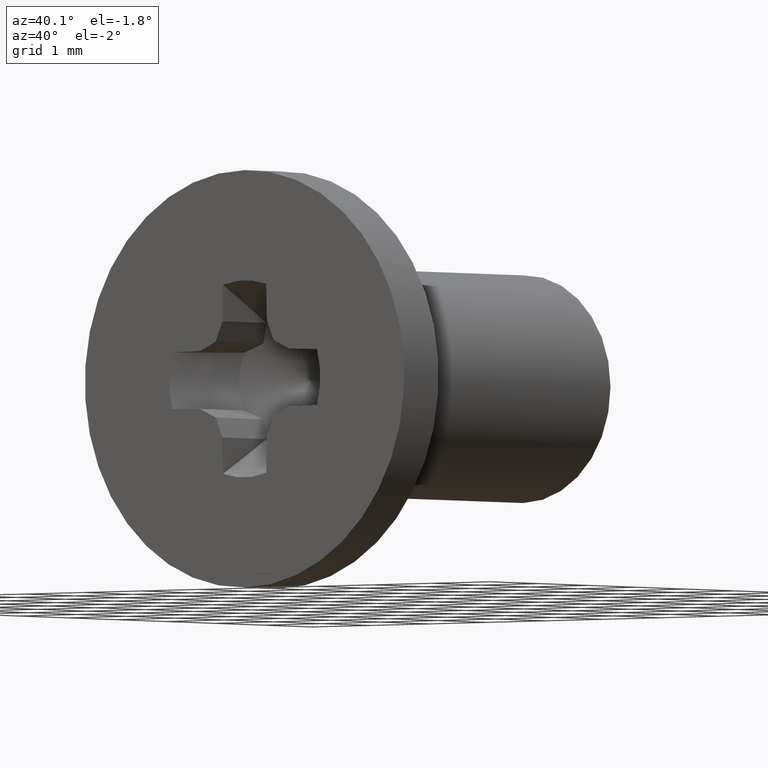
[diagram: clean part render]
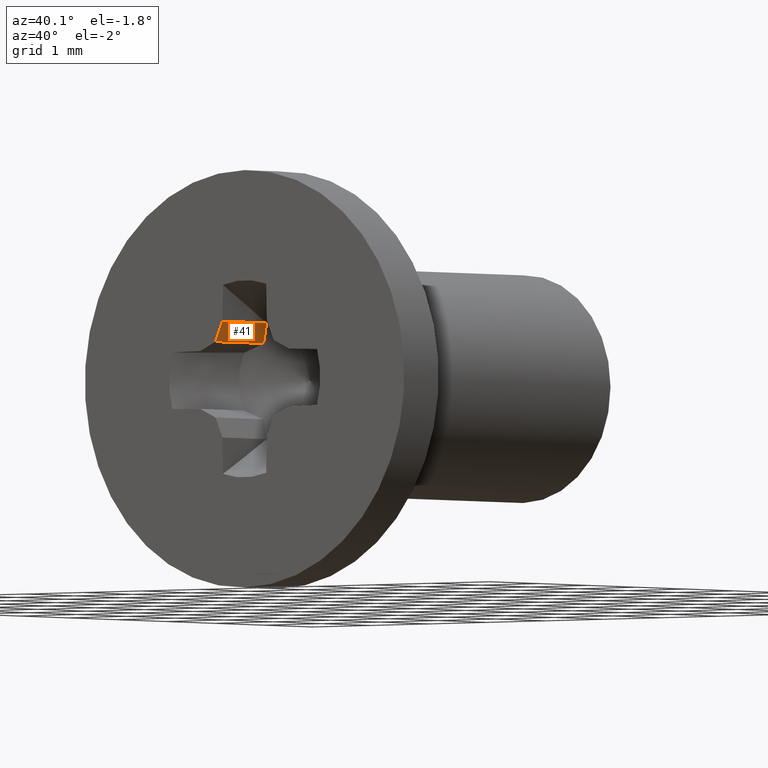
[diagram: same view with one face highlighted and labeled with its STEP entity id]
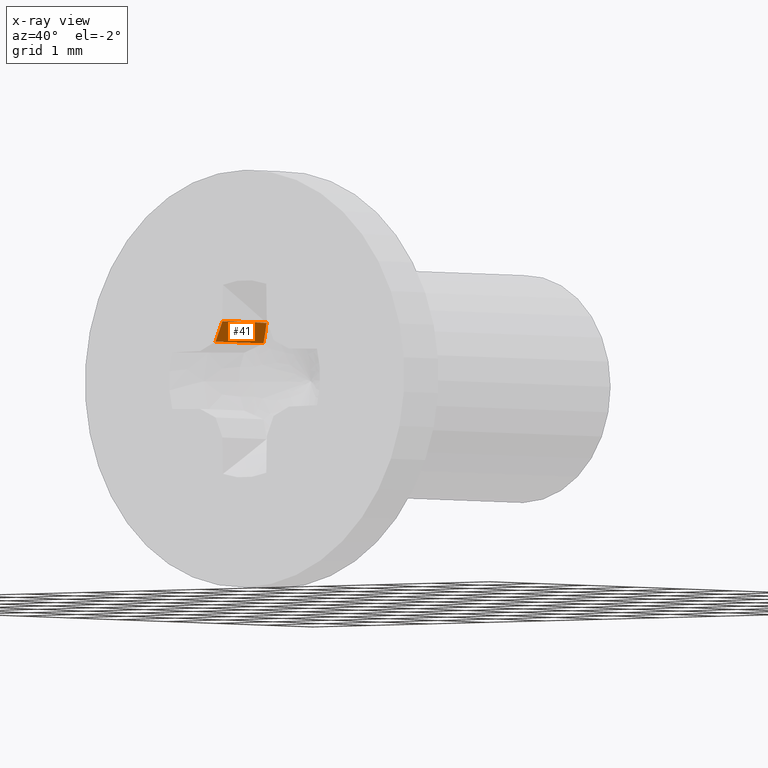
[diagram: x-ray of the same camera — body ghosted, the highlighted face saturated]
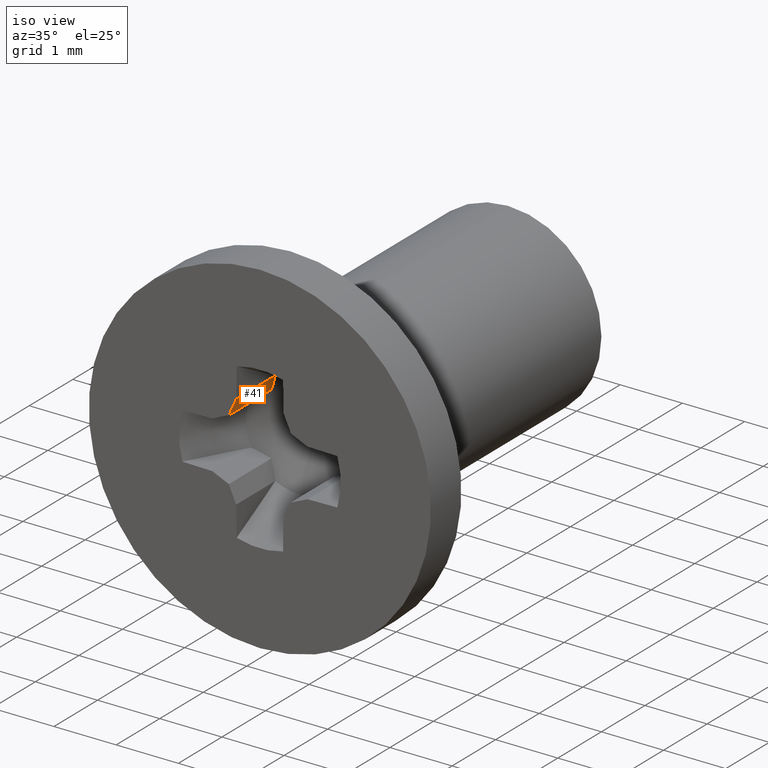
[diagram: same view with one face highlighted and labeled with its STEP entity id]
A machine part, auxiliary view. The second image highlights one B-rep face of the part: STEP entity #41.
The next image is the same camera in x-ray: the body ghosted, the highlighted face saturated — about 0% of this face is hidden behind the body in this view.
A second angle (iso view) of the same face is appended — the face is thin or edge-on in the first view.
In plain terms, the highlighted planar face has unit normal (-0.9135, 0, 0.4067).
Its self-contained STEP definition (entity closure, byte-faithful):
#41=ADVANCED_FACE('',(#80),#79,.F.);
#79=PLANE('',#369);
#80=FACE_OUTER_BOUND('',#370,.T.);
#366=CARTESIAN_POINT('',(-5.11592935186E-01,-7.97857143851E-01,4.73152039263E-01));
#367=DIRECTION('',(-9.13545457643E-01,0.00000000000E+00,4.06736643076E-01));
#368=DIRECTION('',(4.06736643076E-01,0.00000000000E+00,9.13545457643E-01));
#369=AXIS2_PLACEMENT_3D('',#366,#367,#368);
#370=EDGE_LOOP('',(#531,#532,#533,#534));
#531=ORIENTED_EDGE('',*,*,#667,.F.);
#532=ORIENTED_EDGE('',*,*,#668,.T.);
#533=ORIENTED_EDGE('',*,*,#669,.T.);
#534=ORIENTED_EDGE('',*,*,#670,.T.);
#667=EDGE_CURVE('',#753,#754,#755,.T.);
#668=EDGE_CURVE('',#753,#761,#762,.T.);
#669=EDGE_CURVE('',#761,#768,#769,.T.);
#670=EDGE_CURVE('',#768,#754,#775,.T.);
#753=VERTEX_POINT('',#1196);
#754=VERTEX_POINT('',#1197);
#755=LINE('',#1198,#1199);
#761=VERTEX_POINT('',#1201);
#762=(BOUNDED_CURVE() B_SPLINE_CURVE(3,(#1202,#1203,#1204,#1205),.UNSPECIFIED.,.F.,.F.) B_SPLINE_CURVE_WITH_KNOTS((4,4),(3.55343745428E-04,6.54906046522E-04),.UNSPECIFIED.) CURVE() GEOMETRIC_REPRESENTATION_ITEM() RATIONAL_B_SPLINE_CURVE((1.00000000000E+00,1.00000000000E+00,1.00000000000E+00,1.00000000000E+00)) REPRESENTATION_ITEM('') );
#768=VERTEX_POINT('',#1206);
#769=LINE('',#1207,#1208);
#775=LINE('',#1210,#1211);
#1196=CARTESIAN_POINT('',(-4.99750525934E-01,2.78571438514E-01,4.99750525934E-01));
#1197=CARTESIAN_POINT('',(-4.99750525934E-01,-7.00000000000E-01,4.99750525934E-01));
#1198=CARTESIAN_POINT('',(-4.99750525934E-01,2.78571438514E-01,4.99750525934E-01));
#1199=VECTOR('',#1200,9.78571438514E-01);
#1200=DIRECTION('',(0.00000000000E+00,-1.00000000000E+00,0.00000000000E+00));
#1201=CARTESIAN_POINT('',(-3.81326433417E-01,1.99518974701E-01,7.65735392643E-01));
#1202=CARTESIAN_POINT('',(-4.99750525934E-01,2.78571438514E-01,4.99750525934E-01));
#1203=CARTESIAN_POINT('',(-4.59661902178E-01,2.59790755910E-01,5.89791049105E-01));
#1204=CARTESIAN_POINT('',(-4.20037344964E-01,2.31726379474E-01,6.78789261757E-01));
#1205=CARTESIAN_POINT('',(-3.81326433417E-01,1.99518974701E-01,7.65735392643E-01));
#1206=CARTESIAN_POINT('',(-3.81326433417E-01,-7.00000000000E-01,7.65735392643E-01));
#1207=CARTESIAN_POINT('',(-3.81326433417E-01,1.99518974701E-01,7.65735392643E-01));
#1208=VECTOR('',#1209,8.99518974701E-01);
#1209=DIRECTION('',(0.00000000000E+00,-1.00000000000E+00,0.00000000000E+00));
#1210=CARTESIAN_POINT('',(-3.81326433417E-01,-7.00000000000E-01,7.65735392643E-01));
#1211=VECTOR('',#1212,2.91156684634E-01);
#1212=DIRECTION('',(-4.06736643076E-01,0.00000000000E+00,-9.13545457643E-01));